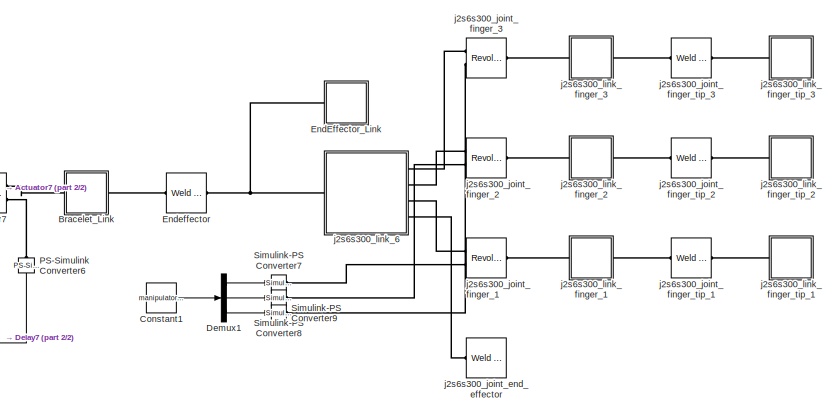
[diagram: root canvas - part 1/2, top right region]
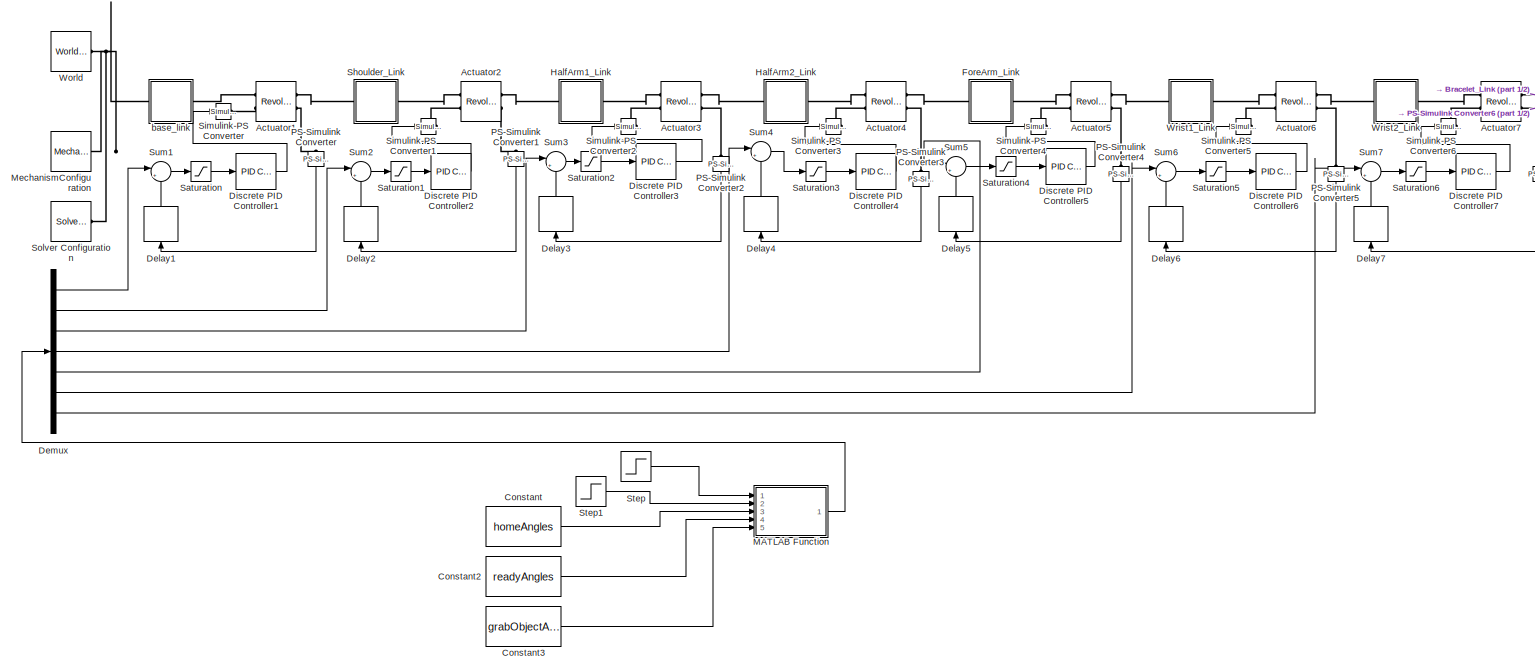
[diagram: root canvas - part 2/2, left side, full height]
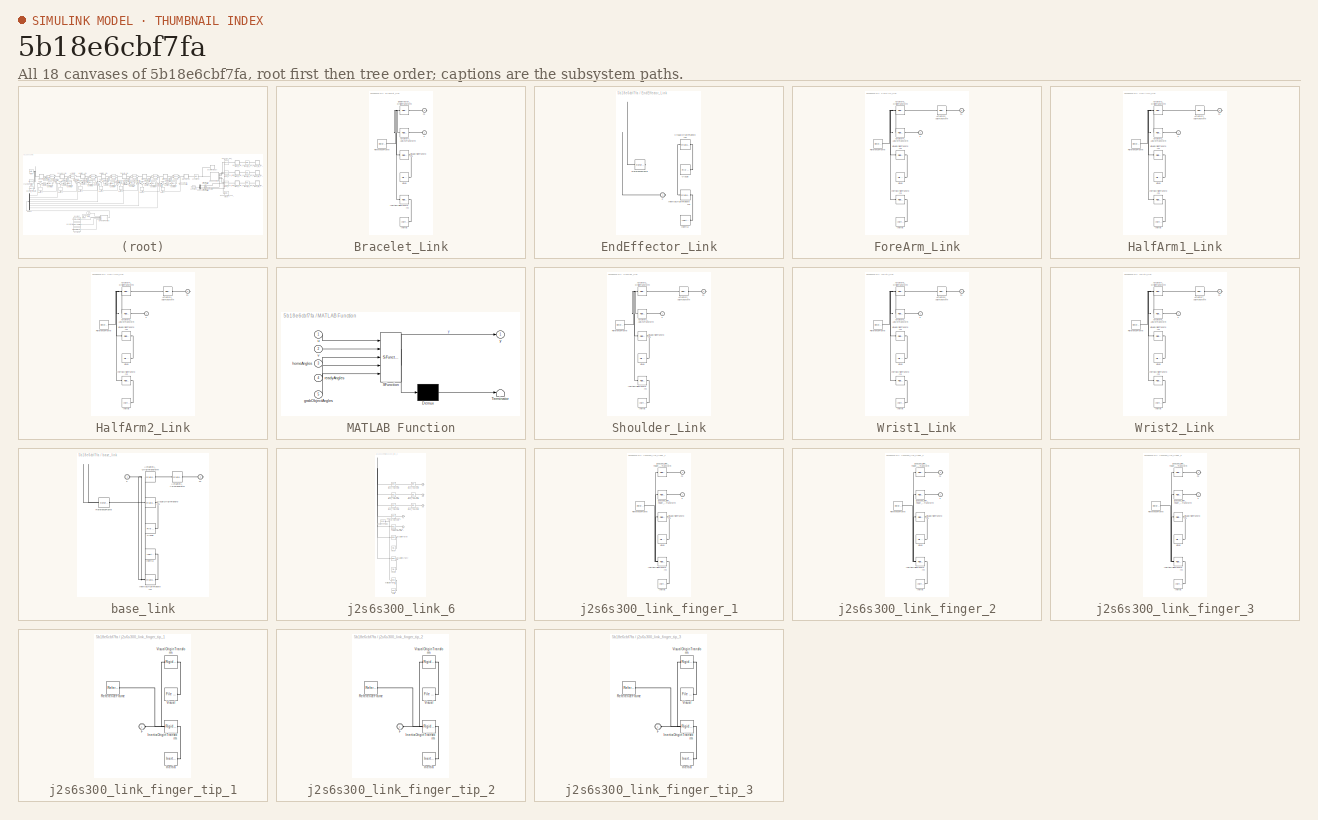
[diagram: thumbnail index - all 18 canvases of the model, root first then tree order]
MODEL slx_5b18e6cbf7fa
KIND model
CONFIG AbsTol = auto
CONFIG EnableMultiTasking = off
CONFIG FixedStep = 0.001
CONFIG MaxStep = auto
CONFIG MinStep = auto
CONFIG RelTol = 1e-3
CONFIG SampleTimeConstraint = Unconstrained
CONFIG SolverName = FixedStepAuto
CONFIG StartTime = 0.0
CONFIG StopTime = 30
BLOCK [Reference] Actuator1  REF=sm_lib/Joints/Revolute Joint
  Ports = [0, 0, 0, 0, 0, 2, 2]
  SourceBlock = sm_lib/Joints/Revolute Joint
  SourceProductBaseCode = MS
  SourceType = Revolute Joint
BLOCK [Reference] Actuator2  REF=sm_lib/Joints/Revolute Joint
  Ports = [0, 0, 0, 0, 0, 2, 2]
  SourceBlock = sm_lib/Joints/Revolute Joint
  SourceProductBaseCode = MS
  SourceType = Revolute Joint
BLOCK [Reference] Actuator3  REF=sm_lib/Joints/Revolute Joint
  Ports = [0, 0, 0, 0, 0, 2, 2]
  SourceBlock = sm_lib/Joints/Revolute Joint
  SourceProductBaseCode = MS
  SourceType = Revolute Joint
BLOCK [Reference] Actuator4  REF=sm_lib/Joints/Revolute Joint
  Ports = [0, 0, 0, 0, 0, 2, 2]
  SourceBlock = sm_lib/Joints/Revolute Joint
  SourceProductBaseCode = MS
  SourceType = Revolute Joint
BLOCK [Reference] Actuator5  REF=sm_lib/Joints/Revolute Joint
  Ports = [0, 0, 0, 0, 0, 2, 2]
  SourceBlock = sm_lib/Joints/Revolute Joint
  SourceProductBaseCode = MS
  SourceType = Revolute Joint
BLOCK [Reference] Actuator6  REF=sm_lib/Joints/Revolute Joint
  Ports = [0, 0, 0, 0, 0, 2, 2]
  SourceBlock = sm_lib/Joints/Revolute Joint
  SourceProductBaseCode = MS
  SourceType = Revolute Joint
BLOCK [Reference] Actuator7  REF=sm_lib/Joints/Revolute Joint
  Ports = [0, 0, 0, 0, 0, 2, 2]
  SourceBlock = sm_lib/Joints/Revolute Joint
  SourceProductBaseCode = MS
  SourceType = Revolute Joint
BLOCK [SubSystem] Bracelet_Link
  Ports = [0, 0, 0, 0, 0, 1, 1]
  RequestExecContextInheritance = off
BLOCK [Reference] Bracelet_Link/Actuator7_AxisInvTransform  REF=sm_lib/Frames and
Transforms/Rigid
Transform
  Ports = [0, 0, 0, 0, 0, 1, 1]
  SourceBlock = sm_lib/Frames and\nTransforms/Rigid\nTransform
  SourceProductBaseCode = MS
  SourceType = Rigid\nTransform
BLOCK [Reference] Bracelet_Link/Endeffector_OriginTransform  REF=sm_lib/Frames and
Transforms/Rigid
Transform
  Ports = [0, 0, 0, 0, 0, 1, 1]
  SourceBlock = sm_lib/Frames and\nTransforms/Rigid\nTransform
  SourceProductBaseCode = MS
  SourceType = Rigid\nTransform
BLOCK [PMIOPort] Bracelet_Link/F
  Side = Left
BLOCK [PMIOPort] Bracelet_Link/F1
  Port = 2
  Side = Right
BLOCK [Reference] Bracelet_Link/Inertia  REF=sm_lib/Body Elements/Inertia
  Ports = [0, 0, 0, 0, 0, 0, 1]
  SourceBlock = sm_lib/Body Elements/Inertia
  SourceProductBaseCode = MS
  SourceType = Inertia
BLOCK [Reference] Bracelet_Link/InertiaOriginTransform  REF=sm_lib/Frames and
Transforms/Rigid
Transform
  Ports = [0, 0, 0, 0, 0, 1, 1]
  SourceBlock = sm_lib/Frames and\nTransforms/Rigid\nTransform
  SourceProductBaseCode = MS
  SourceType = Rigid\nTransform
BLOCK [Reference] Bracelet_Link/ReferenceFrame  REF=sm_lib/Frames and
Transforms/Reference
Frame
  Ports = [0, 0, 0, 0, 0, 0, 1]
  SourceBlock = sm_lib/Frames and\nTransforms/Reference\nFrame
  SourceProductBaseCode = MS
  SourceType = Reference\nFrame
BLOCK [Reference] Bracelet_Link/Visual  REF=sm_lib/Body Elements/File Solid
  Ports = [0, 0, 0, 0, 0, 0, 1]
  SourceBlock = sm_lib/Body Elements/File Solid
  SourceProductBaseCode = MS
  SourceType = File Solid
BLOCK [Reference] Bracelet_Link/VisualOriginTransform  REF=sm_lib/Frames and
Transforms/Rigid
Transform
  Ports = [0, 0, 0, 0, 0, 1, 1]
  SourceBlock = sm_lib/Frames and\nTransforms/Rigid\nTransform
  SourceProductBaseCode = MS
  SourceType = Rigid\nTransform
BLOCK [Constant] Constant
  SampleTime = -1
  Value = homeAngles
BLOCK [Constant] Constant1
  SampleTime = -1
  Value = manipulatorGripperAngles
BLOCK [Constant] Constant2
  SampleTime = -1
  Value = readyAngles
BLOCK [Constant] Constant3
  SampleTime = -1
  Value = grabObjectAngles
BLOCK [Delay] Delay1
  DelayLength = 1
  InitialCondition = 0
  InputPortMap = u0
  NameLocation = right
  Ports = [1, 1]
BLOCK [Delay] Delay2
  DelayLength = 1
  InitialCondition = 0
  InputPortMap = u0
  NameLocation = right
  Ports = [1, 1]
BLOCK [Delay] Delay3
  DelayLength = 1
  InitialCondition = 0
  InputPortMap = u0
  NameLocation = right
  Ports = [1, 1]
BLOCK [Delay] Delay4
  DelayLength = 1
  InitialCondition = 0
  InputPortMap = u0
  NameLocation = right
  Ports = [1, 1]
BLOCK [Delay] Delay5
  DelayLength = 1
  InitialCondition = 0
  InputPortMap = u0
  NameLocation = right
  Ports = [1, 1]
BLOCK [Delay] Delay6
  DelayLength = 1
  InitialCondition = 0
  InputPortMap = u0
  NameLocation = right
  Ports = [1, 1]
BLOCK [Delay] Delay7
  DelayLength = 1
  InitialCondition = 0
  InputPortMap = u0
  NameLocation = right
  Ports = [1, 1]
BLOCK [Demux] Demux
  Outputs = 7
  Ports = [1, 7]
BLOCK [Demux] Demux1
  Outputs = 3
  Ports = [1, 3]
BLOCK [Reference] Discrete PID Controller1  REF=slpidlib/PID Controller
  Ports = [1, 1]
  SourceBlock = slpidlib/PID Controller
  SourceProductBaseCode = SL
  SourceType = PID 1dof
BLOCK [Reference] Discrete PID Controller2  REF=slpidlib/PID Controller
  Ports = [1, 1]
  SourceBlock = slpidlib/PID Controller
  SourceProductBaseCode = SL
  SourceType = PID 1dof
BLOCK [Reference] Discrete PID Controller3  REF=slpidlib/PID Controller
  Ports = [1, 1]
  SourceBlock = slpidlib/PID Controller
  SourceProductBaseCode = SL
  SourceType = PID 1dof
BLOCK [Reference] Discrete PID Controller4  REF=slpidlib/PID Controller
  Ports = [1, 1]
  SourceBlock = slpidlib/PID Controller
  SourceProductBaseCode = SL
  SourceType = PID 1dof
BLOCK [Reference] Discrete PID Controller5  REF=slpidlib/PID Controller
  Ports = [1, 1]
  SourceBlock = slpidlib/PID Controller
  SourceProductBaseCode = SL
  SourceType = PID 1dof
BLOCK [Reference] Discrete PID Controller6  REF=slpidlib/PID Controller
  Ports = [1, 1]
  SourceBlock = slpidlib/PID Controller
  SourceProductBaseCode = SL
  SourceType = PID 1dof
BLOCK [Reference] Discrete PID Controller7  REF=slpidlib/PID Controller
  Ports = [1, 1]
  SourceBlock = slpidlib/PID Controller
  SourceProductBaseCode = SL
  SourceType = PID 1dof
BLOCK [SubSystem] EndEffector_Link
  Ports = [0, 0, 0, 0, 0, 1]
  RequestExecContextInheritance = off
BLOCK [PMIOPort] EndEffector_Link/F
  Side = Left
BLOCK [Reference] EndEffector_Link/Inertia  REF=sm_lib/Body Elements/Inertia
  Ports = [0, 0, 0, 0, 0, 0, 1]
  SourceBlock = sm_lib/Body Elements/Inertia
  SourceProductBaseCode = MS
  SourceType = Inertia
BLOCK [Reference] EndEffector_Link/InertiaOriginTransform  REF=sm_lib/Frames and
Transforms/Rigid
Transform
  Ports = [0, 0, 0, 0, 0, 1, 1]
  SourceBlock = sm_lib/Frames and\nTransforms/Rigid\nTransform
  SourceProductBaseCode = MS
  SourceType = Rigid\nTransform
BLOCK [Reference] EndEffector_Link/ReferenceFrame  REF=sm_lib/Frames and
Transforms/Reference
Frame
  Ports = [0, 0, 0, 0, 0, 0, 1]
  SourceBlock = sm_lib/Frames and\nTransforms/Reference\nFrame
  SourceProductBaseCode = MS
  SourceType = Reference\nFrame
BLOCK [Reference] EndEffector_Link/Visual  REF=sm_lib/Body Elements/File Solid
  Ports = [0, 0, 0, 0, 0, 0, 1]
  SourceBlock = sm_lib/Body Elements/File Solid
  SourceProductBaseCode = MS
  SourceType = File Solid
BLOCK [Reference] EndEffector_Link/VisualOriginTransform  REF=sm_lib/Frames and
Transforms/Rigid
Transform
  Ports = [0, 0, 0, 0, 0, 1, 1]
  SourceBlock = sm_lib/Frames and\nTransforms/Rigid\nTransform
  SourceProductBaseCode = MS
  SourceType = Rigid\nTransform
BLOCK [Reference] Endeffector  REF=sm_lib/Joints/Weld Joint
  Ports = [0, 0, 0, 0, 0, 1, 1]
  SourceBlock = sm_lib/Joints/Weld Joint
  SourceProductBaseCode = MS
  SourceType = Weld Joint
BLOCK [SubSystem] ForeArm_Link
  Ports = [0, 0, 0, 0, 0, 1, 1]
  RequestExecContextInheritance = off
BLOCK [Reference] ForeArm_Link/Actuator4_AxisInvTransform  REF=sm_lib/Frames and
Transforms/Rigid
Transform
  Ports = [0, 0, 0, 0, 0, 1, 1]
  SourceBlock = sm_lib/Frames and\nTransforms/Rigid\nTransform
  SourceProductBaseCode = MS
  SourceType = Rigid\nTransform
BLOCK [Reference] ForeArm_Link/Actuator5_AxisTransform  REF=sm_lib/Frames and
Transforms/Rigid
Transform
  Ports = [0, 0, 0, 0, 0, 1, 1]
  SourceBlock = sm_lib/Frames and\nTransforms/Rigid\nTransform
  SourceProductBaseCode = MS
  SourceType = Rigid\nTransform
BLOCK [Reference] ForeArm_Link/Actuator5_OriginTransform  REF=sm_lib/Frames and
Transforms/Rigid
Transform
  Ports = [0, 0, 0, 0, 0, 1, 1]
  SourceBlock = sm_lib/Frames and\nTransforms/Rigid\nTransform
  SourceProductBaseCode = MS
  SourceType = Rigid\nTransform
BLOCK [PMIOPort] ForeArm_Link/F
  Side = Left
BLOCK [PMIOPort] ForeArm_Link/F1
  Port = 2
  Side = Right
BLOCK [Reference] ForeArm_Link/Inertia  REF=sm_lib/Body Elements/Inertia
  Ports = [0, 0, 0, 0, 0, 0, 1]
  SourceBlock = sm_lib/Body Elements/Inertia
  SourceProductBaseCode = MS
  SourceType = Inertia
BLOCK [Reference] ForeArm_Link/InertiaOriginTransform  REF=sm_lib/Frames and
Transforms/Rigid
Transform
  Ports = [0, 0, 0, 0, 0, 1, 1]
  SourceBlock = sm_lib/Frames and\nTransforms/Rigid\nTransform
  SourceProductBaseCode = MS
  SourceType = Rigid\nTransform
BLOCK [Reference] ForeArm_Link/ReferenceFrame  REF=sm_lib/Frames and
Transforms/Reference
Frame
  Ports = [0, 0, 0, 0, 0, 0, 1]
  SourceBlock = sm_lib/Frames and\nTransforms/Reference\nFrame
  SourceProductBaseCode = MS
  SourceType = Reference\nFrame
BLOCK [Reference] ForeArm_Link/Visual  REF=sm_lib/Body Elements/File Solid
  Ports = [0, 0, 0, 0, 0, 0, 1]
  SourceBlock = sm_lib/Body Elements/File Solid
  SourceProductBaseCode = MS
  SourceType = File Solid
BLOCK [Reference] ForeArm_Link/VisualOriginTransform  REF=sm_lib/Frames and
Transforms/Rigid
Transform
  Ports = [0, 0, 0, 0, 0, 1, 1]
  SourceBlock = sm_lib/Frames and\nTransforms/Rigid\nTransform
  SourceProductBaseCode = MS
  SourceType = Rigid\nTransform
BLOCK [SubSystem] HalfArm1_Link
  Ports = [0, 0, 0, 0, 0, 1, 1]
  RequestExecContextInheritance = off
BLOCK [Reference] HalfArm1_Link/Actuator2_AxisInvTransform  REF=sm_lib/Frames and
Transforms/Rigid
Transform
  Ports = [0, 0, 0, 0, 0, 1, 1]
  SourceBlock = sm_lib/Frames and\nTransforms/Rigid\nTransform
  SourceProductBaseCode = MS
  SourceType = Rigid\nTransform
BLOCK [Reference] HalfArm1_Link/Actuator3_AxisTransform  REF=sm_lib/Frames and
Transforms/Rigid
Transform
  Ports = [0, 0, 0, 0, 0, 1, 1]
  SourceBlock = sm_lib/Frames and\nTransforms/Rigid\nTransform
  SourceProductBaseCode = MS
  SourceType = Rigid\nTransform
BLOCK [Reference] HalfArm1_Link/Actuator3_OriginTransform  REF=sm_lib/Frames and
Transforms/Rigid
Transform
  Ports = [0, 0, 0, 0, 0, 1, 1]
  SourceBlock = sm_lib/Frames and\nTransforms/Rigid\nTransform
  SourceProductBaseCode = MS
  SourceType = Rigid\nTransform
BLOCK [PMIOPort] HalfArm1_Link/F
  Side = Left
BLOCK [PMIOPort] HalfArm1_Link/F1
  Port = 2
  Side = Right
BLOCK [Reference] HalfArm1_Link/Inertia  REF=sm_lib/Body Elements/Inertia
  Ports = [0, 0, 0, 0, 0, 0, 1]
  SourceBlock = sm_lib/Body Elements/Inertia
  SourceProductBaseCode = MS
  SourceType = Inertia
BLOCK [Reference] HalfArm1_Link/InertiaOriginTransform  REF=sm_lib/Frames and
Transforms/Rigid
Transform
  Ports = [0, 0, 0, 0, 0, 1, 1]
  SourceBlock = sm_lib/Frames and\nTransforms/Rigid\nTransform
  SourceProductBaseCode = MS
  SourceType = Rigid\nTransform
BLOCK [Reference] HalfArm1_Link/ReferenceFrame  REF=sm_lib/Frames and
Transforms/Reference
Frame
  Ports = [0, 0, 0, 0, 0, 0, 1]
  SourceBlock = sm_lib/Frames and\nTransforms/Reference\nFrame
  SourceProductBaseCode = MS
  SourceType = Reference\nFrame
BLOCK [Reference] HalfArm1_Link/Visual  REF=sm_lib/Body Elements/File Solid
  Ports = [0, 0, 0, 0, 0, 0, 1]
  SourceBlock = sm_lib/Body Elements/File Solid
  SourceProductBaseCode = MS
  SourceType = File Solid
BLOCK [Reference] HalfArm1_Link/VisualOriginTransform  REF=sm_lib/Frames and
Transforms/Rigid
Transform
  Ports = [0, 0, 0, 0, 0, 1, 1]
  SourceBlock = sm_lib/Frames and\nTransforms/Rigid\nTransform
  SourceProductBaseCode = MS
  SourceType = Rigid\nTransform
BLOCK [SubSystem] HalfArm2_Link
  Ports = [0, 0, 0, 0, 0, 1, 1]
  RequestExecContextInheritance = off
BLOCK [Reference] HalfArm2_Link/Actuator3_AxisInvTransform  REF=sm_lib/Frames and
Transforms/Rigid
Transform
  Ports = [0, 0, 0, 0, 0, 1, 1]
  SourceBlock = sm_lib/Frames and\nTransforms/Rigid\nTransform
  SourceProductBaseCode = MS
  SourceType = Rigid\nTransform
BLOCK [Reference] HalfArm2_Link/Actuator4_AxisTransform  REF=sm_lib/Frames and
Transforms/Rigid
Transform
  Ports = [0, 0, 0, 0, 0, 1, 1]
  SourceBlock = sm_lib/Frames and\nTransforms/Rigid\nTransform
  SourceProductBaseCode = MS
  SourceType = Rigid\nTransform
BLOCK [Reference] HalfArm2_Link/Actuator4_OriginTransform  REF=sm_lib/Frames and
Transforms/Rigid
Transform
  Ports = [0, 0, 0, 0, 0, 1, 1]
  SourceBlock = sm_lib/Frames and\nTransforms/Rigid\nTransform
  SourceProductBaseCode = MS
  SourceType = Rigid\nTransform
BLOCK [PMIOPort] HalfArm2_Link/F
  Side = Left
BLOCK [PMIOPort] HalfArm2_Link/F1
  Port = 2
  Side = Right
BLOCK [Reference] HalfArm2_Link/Inertia  REF=sm_lib/Body Elements/Inertia
  Ports = [0, 0, 0, 0, 0, 0, 1]
  SourceBlock = sm_lib/Body Elements/Inertia
  SourceProductBaseCode = MS
  SourceType = Inertia
BLOCK [Reference] HalfArm2_Link/InertiaOriginTransform  REF=sm_lib/Frames and
Transforms/Rigid
Transform
  Ports = [0, 0, 0, 0, 0, 1, 1]
  SourceBlock = sm_lib/Frames and\nTransforms/Rigid\nTransform
  SourceProductBaseCode = MS
  SourceType = Rigid\nTransform
BLOCK [Reference] HalfArm2_Link/ReferenceFrame  REF=sm_lib/Frames and
Transforms/Reference
Frame
  Ports = [0, 0, 0, 0, 0, 0, 1]
  SourceBlock = sm_lib/Frames and\nTransforms/Reference\nFrame
  SourceProductBaseCode = MS
  SourceType = Reference\nFrame
BLOCK [Reference] HalfArm2_Link/Visual  REF=sm_lib/Body Elements/File Solid
  Ports = [0, 0, 0, 0, 0, 0, 1]
  SourceBlock = sm_lib/Body Elements/File Solid
  SourceProductBaseCode = MS
  SourceType = File Solid
BLOCK [Reference] HalfArm2_Link/VisualOriginTransform  REF=sm_lib/Frames and
Transforms/Rigid
Transform
  Ports = [0, 0, 0, 0, 0, 1, 1]
  SourceBlock = sm_lib/Frames and\nTransforms/Rigid\nTransform
  SourceProductBaseCode = MS
  SourceType = Rigid\nTransform
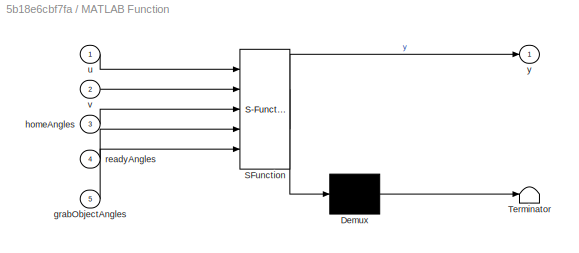
BLOCK [SubSystem] MATLAB Function
  ErrorFcn = Stateflow.Translate.translate
  PermitHierarchicalResolution = ExplicitOnly
  Ports = [5, 1]
  RequestExecContextInheritance = off
  SFBlockType = MATLAB Function
  TreatAsAtomicUnit = on
BLOCK [Demux] MATLAB Function/ Demux 
  Outputs = 1
  Ports = [1, 1]
BLOCK [S-Function] MATLAB Function/ SFunction 
  EnableBusSupport = on
  FunctionName = sf_sfun
  PortCounts = [5 2]
  Ports = [5, 2]
  SFcnIsStateOwnerBlock = off
  SFunctionDeploymentMode = off
  Tag = Stateflow S-Function 2
BLOCK [Terminator] MATLAB Function/ Terminator 
BLOCK [Inport] MATLAB Function/grabObjectAngles
  Port = 5
BLOCK [Inport] MATLAB Function/homeAngles
  Port = 3
BLOCK [Inport] MATLAB Function/readyAngles
  Port = 4
BLOCK [Inport] MATLAB Function/u
BLOCK [Inport] MATLAB Function/v
  Port = 2
BLOCK [Outport] MATLAB Function/y
BLOCK [Reference] MechanismConfiguration  REF=sm_lib/Utilities/Mechanism
Configuration
  Ports = [0, 0, 0, 0, 0, 0, 1]
  SourceBlock = sm_lib/Utilities/Mechanism\nConfiguration
  SourceProductBaseCode = MS
  SourceType = Mechanism\nConfiguration
BLOCK [Reference] PS-Simulink Converter  REF=nesl_utility/PS-Simulink
Converter
  NameLocation = left
  Ports = [0, 1, 0, 0, 0, 1]
  SourceBlock = nesl_utility/PS-Simulink\nConverter
  SourceProductBaseCode = SS,PW,VE
  SourceType = PS-Simulink\nConverter
BLOCK [Reference] PS-Simulink Converter1  REF=nesl_utility/PS-Simulink
Converter
  NameLocation = left
  Ports = [0, 1, 0, 0, 0, 1]
  SourceBlock = nesl_utility/PS-Simulink\nConverter
  SourceProductBaseCode = SS,PW,VE
  SourceType = PS-Simulink\nConverter
BLOCK [Reference] PS-Simulink Converter2  REF=nesl_utility/PS-Simulink
Converter
  NameLocation = left
  Ports = [0, 1, 0, 0, 0, 1]
  SourceBlock = nesl_utility/PS-Simulink\nConverter
  SourceProductBaseCode = SS,PW,VE
  SourceType = PS-Simulink\nConverter
BLOCK [Reference] PS-Simulink Converter3  REF=nesl_utility/PS-Simulink
Converter
  NameLocation = left
  Ports = [0, 1, 0, 0, 0, 1]
  SourceBlock = nesl_utility/PS-Simulink\nConverter
  SourceProductBaseCode = SS,PW,VE
  SourceType = PS-Simulink\nConverter
BLOCK [Reference] PS-Simulink Converter4  REF=nesl_utility/PS-Simulink
Converter
  NameLocation = left
  Ports = [0, 1, 0, 0, 0, 1]
  SourceBlock = nesl_utility/PS-Simulink\nConverter
  SourceProductBaseCode = SS,PW,VE
  SourceType = PS-Simulink\nConverter
BLOCK [Reference] PS-Simulink Converter5  REF=nesl_utility/PS-Simulink
Converter
  NameLocation = left
  Ports = [0, 1, 0, 0, 0, 1]
  SourceBlock = nesl_utility/PS-Simulink\nConverter
  SourceProductBaseCode = SS,PW,VE
  SourceType = PS-Simulink\nConverter
BLOCK [Reference] PS-Simulink Converter6  REF=nesl_utility/PS-Simulink
Converter
  NameLocation = left
  Ports = [0, 1, 0, 0, 0, 1]
  SourceBlock = nesl_utility/PS-Simulink\nConverter
  SourceProductBaseCode = SS,PW,VE
  SourceType = PS-Simulink\nConverter
BLOCK [Saturate] Saturation
BLOCK [Saturate] Saturation1
BLOCK [Saturate] Saturation2
BLOCK [Saturate] Saturation3
BLOCK [Saturate] Saturation4
BLOCK [Saturate] Saturation5
BLOCK [Saturate] Saturation6
BLOCK [SubSystem] Shoulder_Link
  Ports = [0, 0, 0, 0, 0, 1, 1]
  RequestExecContextInheritance = off
BLOCK [Reference] Shoulder_Link/Actuator1_AxisInvTransform  REF=sm_lib/Frames and
Transforms/Rigid
Transform
  Ports = [0, 0, 0, 0, 0, 1, 1]
  SourceBlock = sm_lib/Frames and\nTransforms/Rigid\nTransform
  SourceProductBaseCode = MS
  SourceType = Rigid\nTransform
BLOCK [Reference] Shoulder_Link/Actuator2_AxisTransform  REF=sm_lib/Frames and
Transforms/Rigid
Transform
  Ports = [0, 0, 0, 0, 0, 1, 1]
  SourceBlock = sm_lib/Frames and\nTransforms/Rigid\nTransform
  SourceProductBaseCode = MS
  SourceType = Rigid\nTransform
BLOCK [Reference] Shoulder_Link/Actuator2_OriginTransform  REF=sm_lib/Frames and
Transforms/Rigid
Transform
  Ports = [0, 0, 0, 0, 0, 1, 1]
  SourceBlock = sm_lib/Frames and\nTransforms/Rigid\nTransform
  SourceProductBaseCode = MS
  SourceType = Rigid\nTransform
BLOCK [PMIOPort] Shoulder_Link/F
  Side = Left
BLOCK [PMIOPort] Shoulder_Link/F1
  Port = 2
  Side = Right
BLOCK [Reference] Shoulder_Link/Inertia  REF=sm_lib/Body Elements/Inertia
  Ports = [0, 0, 0, 0, 0, 0, 1]
  SourceBlock = sm_lib/Body Elements/Inertia
  SourceProductBaseCode = MS
  SourceType = Inertia
BLOCK [Reference] Shoulder_Link/InertiaOriginTransform  REF=sm_lib/Frames and
Transforms/Rigid
Transform
  Ports = [0, 0, 0, 0, 0, 1, 1]
  SourceBlock = sm_lib/Frames and\nTransforms/Rigid\nTransform
  SourceProductBaseCode = MS
  SourceType = Rigid\nTransform
BLOCK [Reference] Shoulder_Link/ReferenceFrame  REF=sm_lib/Frames and
Transforms/Reference
Frame
  Ports = [0, 0, 0, 0, 0, 0, 1]
  SourceBlock = sm_lib/Frames and\nTransforms/Reference\nFrame
  SourceProductBaseCode = MS
  SourceType = Reference\nFrame
BLOCK [Reference] Shoulder_Link/Visual  REF=sm_lib/Body Elements/File Solid
  Ports = [0, 0, 0, 0, 0, 0, 1]
  SourceBlock = sm_lib/Body Elements/File Solid
  SourceProductBaseCode = MS
  SourceType = File Solid
BLOCK [Reference] Shoulder_Link/VisualOriginTransform  REF=sm_lib/Frames and
Transforms/Rigid
Transform
  Ports = [0, 0, 0, 0, 0, 1, 1]
  SourceBlock = sm_lib/Frames and\nTransforms/Rigid\nTransform
  SourceProductBaseCode = MS
  SourceType = Rigid\nTransform
BLOCK [Reference] Simulink-PS Converter  REF=nesl_utility/Simulink-PS
Converter
  Ports = [1, 0, 0, 0, 0, 0, 1]
  SourceBlock = nesl_utility/Simulink-PS\nConverter
  SourceProductBaseCode = SS,PW,VE
  SourceType = Simulink-PS\nConverter
BLOCK [Reference] Simulink-PS Converter1  REF=nesl_utility/Simulink-PS
Converter
  Ports = [1, 0, 0, 0, 0, 0, 1]
  SourceBlock = nesl_utility/Simulink-PS\nConverter
  SourceProductBaseCode = SS,PW,VE
  SourceType = Simulink-PS\nConverter
BLOCK [Reference] Simulink-PS Converter2  REF=nesl_utility/Simulink-PS
Converter
  Ports = [1, 0, 0, 0, 0, 0, 1]
  SourceBlock = nesl_utility/Simulink-PS\nConverter
  SourceProductBaseCode = SS,PW,VE
  SourceType = Simulink-PS\nConverter
BLOCK [Reference] Simulink-PS Converter3  REF=nesl_utility/Simulink-PS
Converter
  Ports = [1, 0, 0, 0, 0, 0, 1]
  SourceBlock = nesl_utility/Simulink-PS\nConverter
  SourceProductBaseCode = SS,PW,VE
  SourceType = Simulink-PS\nConverter
BLOCK [Reference] Simulink-PS Converter4  REF=nesl_utility/Simulink-PS
Converter
  Ports = [1, 0, 0, 0, 0, 0, 1]
  SourceBlock = nesl_utility/Simulink-PS\nConverter
  SourceProductBaseCode = SS,PW,VE
  SourceType = Simulink-PS\nConverter
BLOCK [Reference] Simulink-PS Converter5  REF=nesl_utility/Simulink-PS
Converter
  Ports = [1, 0, 0, 0, 0, 0, 1]
  SourceBlock = nesl_utility/Simulink-PS\nConverter
  SourceProductBaseCode = SS,PW,VE
  SourceType = Simulink-PS\nConverter
BLOCK [Reference] Simulink-PS Converter6  REF=nesl_utility/Simulink-PS
Converter
  Ports = [1, 0, 0, 0, 0, 0, 1]
  SourceBlock = nesl_utility/Simulink-PS\nConverter
  SourceProductBaseCode = SS,PW,VE
  SourceType = Simulink-PS\nConverter
BLOCK [Reference] Simulink-PS Converter7  REF=nesl_utility/Simulink-PS
Converter
  Ports = [1, 0, 0, 0, 0, 0, 1]
  SourceBlock = nesl_utility/Simulink-PS\nConverter
  SourceProductBaseCode = SS,PW,VE
  SourceType = Simulink-PS\nConverter
BLOCK [Reference] Simulink-PS Converter8  REF=nesl_utility/Simulink-PS
Converter
  Ports = [1, 0, 0, 0, 0, 0, 1]
  SourceBlock = nesl_utility/Simulink-PS\nConverter
  SourceProductBaseCode = SS,PW,VE
  SourceType = Simulink-PS\nConverter
BLOCK [Reference] Simulink-PS Converter9  REF=nesl_utility/Simulink-PS
Converter
  Ports = [1, 0, 0, 0, 0, 0, 1]
  SourceBlock = nesl_utility/Simulink-PS\nConverter
  SourceProductBaseCode = SS,PW,VE
  SourceType = Simulink-PS\nConverter
BLOCK [Reference] Solver Configuration  REF=nesl_utility/Solver
Configuration
  Ports = [0, 0, 0, 0, 0, 0, 1]
  SourceBlock = nesl_utility/Solver\nConfiguration
  SourceProductBaseCode = SS,PW,VE
  SourceType = Solver\nConfiguration
BLOCK [Step] Step
  SampleTime = 0
  Time = 10
BLOCK [Step] Step1
  SampleTime = 0
  Time = 20
BLOCK [Sum] Sum1
  Inputs = |+-
  Ports = [2, 1]
BLOCK [Sum] Sum2
  Inputs = |+-
  Ports = [2, 1]
BLOCK [Sum] Sum3
  Inputs = |+-
  Ports = [2, 1]
BLOCK [Sum] Sum4
  Inputs = |+-
  Ports = [2, 1]
BLOCK [Sum] Sum5
  Inputs = |+-
  Ports = [2, 1]
BLOCK [Sum] Sum6
  Inputs = |+-
  Ports = [2, 1]
BLOCK [Sum] Sum7
  Inputs = |+-
  Ports = [2, 1]
BLOCK [Reference] World  REF=sm_lib/Frames and
Transforms/World Frame
  Ports = [0, 0, 0, 0, 0, 0, 1]
  SourceBlock = sm_lib/Frames and\nTransforms/World Frame
  SourceProductBaseCode = MS
  SourceType = World Frame
BLOCK [SubSystem] Wrist1_Link
  Ports = [0, 0, 0, 0, 0, 1, 1]
  RequestExecContextInheritance = off
BLOCK [Reference] Wrist1_Link/Actuator5_AxisInvTransform  REF=sm_lib/Frames and
Transforms/Rigid
Transform
  Ports = [0, 0, 0, 0, 0, 1, 1]
  SourceBlock = sm_lib/Frames and\nTransforms/Rigid\nTransform
  SourceProductBaseCode = MS
  SourceType = Rigid\nTransform
BLOCK [Reference] Wrist1_Link/Actuator6_AxisTransform  REF=sm_lib/Frames and
Transforms/Rigid
Transform
  Ports = [0, 0, 0, 0, 0, 1, 1]
  SourceBlock = sm_lib/Frames and\nTransforms/Rigid\nTransform
  SourceProductBaseCode = MS
  SourceType = Rigid\nTransform
BLOCK [Reference] Wrist1_Link/Actuator6_OriginTransform  REF=sm_lib/Frames and
Transforms/Rigid
Transform
  Ports = [0, 0, 0, 0, 0, 1, 1]
  SourceBlock = sm_lib/Frames and\nTransforms/Rigid\nTransform
  SourceProductBaseCode = MS
  SourceType = Rigid\nTransform
BLOCK [PMIOPort] Wrist1_Link/F
  Side = Left
BLOCK [PMIOPort] Wrist1_Link/F1
  Port = 2
  Side = Right
BLOCK [Reference] Wrist1_Link/Inertia  REF=sm_lib/Body Elements/Inertia
  Ports = [0, 0, 0, 0, 0, 0, 1]
  SourceBlock = sm_lib/Body Elements/Inertia
  SourceProductBaseCode = MS
  SourceType = Inertia
BLOCK [Reference] Wrist1_Link/InertiaOriginTransform  REF=sm_lib/Frames and
Transforms/Rigid
Transform
  Ports = [0, 0, 0, 0, 0, 1, 1]
  SourceBlock = sm_lib/Frames and\nTransforms/Rigid\nTransform
  SourceProductBaseCode = MS
  SourceType = Rigid\nTransform
BLOCK [Reference] Wrist1_Link/ReferenceFrame  REF=sm_lib/Frames and
Transforms/Reference
Frame
  Ports = [0, 0, 0, 0, 0, 0, 1]
  SourceBlock = sm_lib/Frames and\nTransforms/Reference\nFrame
  SourceProductBaseCode = MS
  SourceType = Reference\nFrame
BLOCK [Reference] Wrist1_Link/Visual  REF=sm_lib/Body Elements/File Solid
  Ports = [0, 0, 0, 0, 0, 0, 1]
  SourceBlock = sm_lib/Body Elements/File Solid
  SourceProductBaseCode = MS
  SourceType = File Solid
BLOCK [Reference] Wrist1_Link/VisualOriginTransform  REF=sm_lib/Frames and
Transforms/Rigid
Transform
  Ports = [0, 0, 0, 0, 0, 1, 1]
  SourceBlock = sm_lib/Frames and\nTransforms/Rigid\nTransform
  SourceProductBaseCode = MS
  SourceType = Rigid\nTransform
BLOCK [SubSystem] Wrist2_Link
  Ports = [0, 0, 0, 0, 0, 1, 1]
  RequestExecContextInheritance = off
BLOCK [Reference] Wrist2_Link/Actuator6_AxisInvTransform  REF=sm_lib/Frames and
Transforms/Rigid
Transform
  Ports = [0, 0, 0, 0, 0, 1, 1]
  SourceBlock = sm_lib/Frames and\nTransforms/Rigid\nTransform
  SourceProductBaseCode = MS
  SourceType = Rigid\nTransform
BLOCK [Reference] Wrist2_Link/Actuator7_AxisTransform  REF=sm_lib/Frames and
Transforms/Rigid
Transform
  Ports = [0, 0, 0, 0, 0, 1, 1]
  SourceBlock = sm_lib/Frames and\nTransforms/Rigid\nTransform
  SourceProductBaseCode = MS
  SourceType = Rigid\nTransform
BLOCK [Reference] Wrist2_Link/Actuator7_OriginTransform  REF=sm_lib/Frames and
Transforms/Rigid
Transform
  Ports = [0, 0, 0, 0, 0, 1, 1]
  SourceBlock = sm_lib/Frames and\nTransforms/Rigid\nTransform
  SourceProductBaseCode = MS
  SourceType = Rigid\nTransform
BLOCK [PMIOPort] Wrist2_Link/F
  Side = Left
BLOCK [PMIOPort] Wrist2_Link/F1
  Port = 2
  Side = Right
BLOCK [Reference] Wrist2_Link/Inertia  REF=sm_lib/Body Elements/Inertia
  Ports = [0, 0, 0, 0, 0, 0, 1]
  SourceBlock = sm_lib/Body Elements/Inertia
  SourceProductBaseCode = MS
  SourceType = Inertia
BLOCK [Reference] Wrist2_Link/InertiaOriginTransform  REF=sm_lib/Frames and
Transforms/Rigid
Transform
  Ports = [0, 0, 0, 0, 0, 1, 1]
  SourceBlock = sm_lib/Frames and\nTransforms/Rigid\nTransform
  SourceProductBaseCode = MS
  SourceType = Rigid\nTransform
BLOCK [Reference] Wrist2_Link/ReferenceFrame  REF=sm_lib/Frames and
Transforms/Reference
Frame
  Ports = [0, 0, 0, 0, 0, 0, 1]
  SourceBlock = sm_lib/Frames and\nTransforms/Reference\nFrame
  SourceProductBaseCode = MS
  SourceType = Reference\nFrame
BLOCK [Reference] Wrist2_Link/Visual  REF=sm_lib/Body Elements/File Solid
  Ports = [0, 0, 0, 0, 0, 0, 1]
  SourceBlock = sm_lib/Body Elements/File Solid
  SourceProductBaseCode = MS
  SourceType = File Solid
BLOCK [Reference] Wrist2_Link/VisualOriginTransform  REF=sm_lib/Frames and
Transforms/Rigid
Transform
  Ports = [0, 0, 0, 0, 0, 1, 1]
  SourceBlock = sm_lib/Frames and\nTransforms/Rigid\nTransform
  SourceProductBaseCode = MS
  SourceType = Rigid\nTransform
BLOCK [SubSystem] base_link
  Ports = [0, 0, 0, 0, 0, 1, 1]
  RequestExecContextInheritance = off
BLOCK [Reference] base_link/Actuator1_AxisTransform  REF=sm_lib/Frames and
Transforms/Rigid
Transform
  Ports = [0, 0, 0, 0, 0, 1, 1]
  SourceBlock = sm_lib/Frames and\nTransforms/Rigid\nTransform
  SourceProductBaseCode = MS
  SourceType = Rigid\nTransform
BLOCK [Reference] base_link/Actuator1_OriginTransform  REF=sm_lib/Frames and
Transforms/Rigid
Transform
  Ports = [0, 0, 0, 0, 0, 1, 1]
  SourceBlock = sm_lib/Frames and\nTransforms/Rigid\nTransform
  SourceProductBaseCode = MS
  SourceType = Rigid\nTransform
BLOCK [PMIOPort] base_link/F
  Side = Left
BLOCK [PMIOPort] base_link/F1
  Port = 2
  Side = Right
BLOCK [Reference] base_link/Inertia  REF=sm_lib/Body Elements/Inertia
  Ports = [0, 0, 0, 0, 0, 0, 1]
  SourceBlock = sm_lib/Body Elements/Inertia
  SourceProductBaseCode = MS
  SourceType = Inertia
BLOCK [Reference] base_link/InertiaOriginTransform  REF=sm_lib/Frames and
Transforms/Rigid
Transform
  Ports = [0, 0, 0, 0, 0, 1, 1]
  SourceBlock = sm_lib/Frames and\nTransforms/Rigid\nTransform
  SourceProductBaseCode = MS
  SourceType = Rigid\nTransform
BLOCK [Reference] base_link/ReferenceFrame  REF=sm_lib/Frames and
Transforms/Reference
Frame
  Ports = [0, 0, 0, 0, 0, 0, 1]
  SourceBlock = sm_lib/Frames and\nTransforms/Reference\nFrame
  SourceProductBaseCode = MS
  SourceType = Reference\nFrame
BLOCK [Reference] base_link/Visual  REF=sm_lib/Body Elements/File Solid
  Ports = [0, 0, 0, 0, 0, 0, 1]
  SourceBlock = sm_lib/Body Elements/File Solid
  SourceProductBaseCode = MS
  SourceType = File Solid
BLOCK [Reference] base_link/VisualOriginTransform  REF=sm_lib/Frames and
Transforms/Rigid
Transform
  Ports = [0, 0, 0, 0, 0, 1, 1]
  SourceBlock = sm_lib/Frames and\nTransforms/Rigid\nTransform
  SourceProductBaseCode = MS
  SourceType = Rigid\nTransform
BLOCK [Reference] j2s6s300_joint_end_effector  REF=sm_lib/Joints/Weld Joint
  Ports = [0, 0, 0, 0, 0, 1, 1]
  SourceBlock = sm_lib/Joints/Weld Joint
  SourceProductBaseCode = MS
  SourceType = Weld Joint
BLOCK [Reference] j2s6s300_joint_finger_1  REF=sm_lib/Joints/Revolute Joint
  Ports = [0, 0, 0, 0, 0, 2, 1]
  SourceBlock = sm_lib/Joints/Revolute Joint
  SourceProductBaseCode = MS
  SourceType = Revolute Joint
BLOCK [Reference] j2s6s300_joint_finger_2  REF=sm_lib/Joints/Revolute Joint
  Ports = [0, 0, 0, 0, 0, 2, 1]
  SourceBlock = sm_lib/Joints/Revolute Joint
  SourceProductBaseCode = MS
  SourceType = Revolute Joint
BLOCK [Reference] j2s6s300_joint_finger_3  REF=sm_lib/Joints/Revolute Joint
  Ports = [0, 0, 0, 0, 0, 2, 1]
  SourceBlock = sm_lib/Joints/Revolute Joint
  SourceProductBaseCode = MS
  SourceType = Revolute Joint
BLOCK [Reference] j2s6s300_joint_finger_tip_1  REF=sm_lib/Joints/Weld Joint
  Ports = [0, 0, 0, 0, 0, 1, 1]
  SourceBlock = sm_lib/Joints/Weld Joint
  SourceProductBaseCode = MS
  SourceType = Weld Joint
BLOCK [Reference] j2s6s300_joint_finger_tip_2  REF=sm_lib/Joints/Weld Joint
  Ports = [0, 0, 0, 0, 0, 1, 1]
  SourceBlock = sm_lib/Joints/Weld Joint
  SourceProductBaseCode = MS
  SourceType = Weld Joint
BLOCK [Reference] j2s6s300_joint_finger_tip_3  REF=sm_lib/Joints/Weld Joint
  Ports = [0, 0, 0, 0, 0, 1, 1]
  SourceBlock = sm_lib/Joints/Weld Joint
  SourceProductBaseCode = MS
  SourceType = Weld Joint
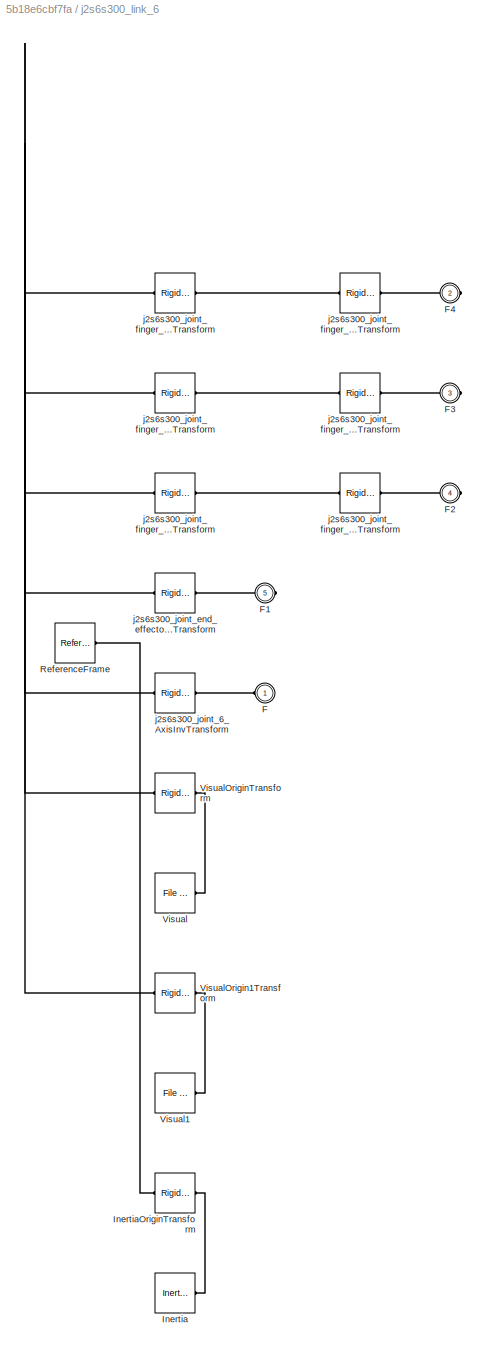
BLOCK [SubSystem] j2s6s300_link_6
  Ports = [0, 0, 0, 0, 0, 1, 4]
  RequestExecContextInheritance = off
BLOCK [PMIOPort] j2s6s300_link_6/F
  Side = Left
BLOCK [PMIOPort] j2s6s300_link_6/F1
  Port = 5
  Side = Right
BLOCK [PMIOPort] j2s6s300_link_6/F2
  Port = 4
  Side = Right
BLOCK [PMIOPort] j2s6s300_link_6/F3
  Port = 3
  Side = Right
BLOCK [PMIOPort] j2s6s300_link_6/F4
  Port = 2
  Side = Right
BLOCK [Reference] j2s6s300_link_6/Inertia  REF=sm_lib/Body Elements/Inertia
  Ports = [0, 0, 0, 0, 0, 0, 1]
  SourceBlock = sm_lib/Body Elements/Inertia
  SourceProductBaseCode = MS
  SourceType = Inertia
BLOCK [Reference] j2s6s300_link_6/InertiaOriginTransform  REF=sm_lib/Frames and
Transforms/Rigid
Transform
  Ports = [0, 0, 0, 0, 0, 1, 1]
  SourceBlock = sm_lib/Frames and\nTransforms/Rigid\nTransform
  SourceProductBaseCode = MS
  SourceType = Rigid\nTransform
BLOCK [Reference] j2s6s300_link_6/ReferenceFrame  REF=sm_lib/Frames and
Transforms/Reference
Frame
  Ports = [0, 0, 0, 0, 0, 0, 1]
  SourceBlock = sm_lib/Frames and\nTransforms/Reference\nFrame
  SourceProductBaseCode = MS
  SourceType = Reference\nFrame
BLOCK [Reference] j2s6s300_link_6/Visual  REF=sm_lib/Body Elements/File Solid
  Ports = [0, 0, 0, 0, 0, 0, 1]
  SourceBlock = sm_lib/Body Elements/File Solid
  SourceProductBaseCode = MS
  SourceType = File Solid
BLOCK [Reference] j2s6s300_link_6/Visual1  REF=sm_lib/Body Elements/File Solid
  Ports = [0, 0, 0, 0, 0, 0, 1]
  SourceBlock = sm_lib/Body Elements/File Solid
  SourceProductBaseCode = MS
  SourceType = File Solid
BLOCK [Reference] j2s6s300_link_6/VisualOrigin1Transform  REF=sm_lib/Frames and
Transforms/Rigid
Transform
  Ports = [0, 0, 0, 0, 0, 1, 1]
  SourceBlock = sm_lib/Frames and\nTransforms/Rigid\nTransform
  SourceProductBaseCode = MS
  SourceType = Rigid\nTransform
BLOCK [Reference] j2s6s300_link_6/VisualOriginTransform  REF=sm_lib/Frames and
Transforms/Rigid
Transform
  Ports = [0, 0, 0, 0, 0, 1, 1]
  SourceBlock = sm_lib/Frames and\nTransforms/Rigid\nTransform
  SourceProductBaseCode = MS
  SourceType = Rigid\nTransform
BLOCK [Reference] j2s6s300_link_6/j2s6s300_joint_6_AxisInvTransform  REF=sm_lib/Frames and
Transforms/Rigid
Transform
  Ports = [0, 0, 0, 0, 0, 1, 1]
  SourceBlock = sm_lib/Frames and\nTransforms/Rigid\nTransform
  SourceProductBaseCode = MS
  SourceType = Rigid\nTransform
BLOCK [Reference] j2s6s300_link_6/j2s6s300_joint_end_effector_OriginTransform  REF=sm_lib/Frames and
Transforms/Rigid
Transform
  Ports = [0, 0, 0, 0, 0, 1, 1]
  SourceBlock = sm_lib/Frames and\nTransforms/Rigid\nTransform
  SourceProductBaseCode = MS
  SourceType = Rigid\nTransform
BLOCK [Reference] j2s6s300_link_6/j2s6s300_joint_finger_1_AxisTransform  REF=sm_lib/Frames and
Transforms/Rigid
Transform
  Ports = [0, 0, 0, 0, 0, 1, 1]
  SourceBlock = sm_lib/Frames and\nTransforms/Rigid\nTransform
  SourceProductBaseCode = MS
  SourceType = Rigid\nTransform
BLOCK [Reference] j2s6s300_link_6/j2s6s300_joint_finger_1_OriginTransform  REF=sm_lib/Frames and
Transforms/Rigid
Transform
  Ports = [0, 0, 0, 0, 0, 1, 1]
  SourceBlock = sm_lib/Frames and\nTransforms/Rigid\nTransform
  SourceProductBaseCode = MS
  SourceType = Rigid\nTransform
BLOCK [Reference] j2s6s300_link_6/j2s6s300_joint_finger_2_AxisTransform  REF=sm_lib/Frames and
Transforms/Rigid
Transform
  Ports = [0, 0, 0, 0, 0, 1, 1]
  SourceBlock = sm_lib/Frames and\nTransforms/Rigid\nTransform
  SourceProductBaseCode = MS
  SourceType = Rigid\nTransform
BLOCK [Reference] j2s6s300_link_6/j2s6s300_joint_finger_2_OriginTransform  REF=sm_lib/Frames and
Transforms/Rigid
Transform
  Ports = [0, 0, 0, 0, 0, 1, 1]
  SourceBlock = sm_lib/Frames and\nTransforms/Rigid\nTransform
  SourceProductBaseCode = MS
  SourceType = Rigid\nTransform
BLOCK [Reference] j2s6s300_link_6/j2s6s300_joint_finger_3_AxisTransform  REF=sm_lib/Frames and
Transforms/Rigid
Transform
  Ports = [0, 0, 0, 0, 0, 1, 1]
  SourceBlock = sm_lib/Frames and\nTransforms/Rigid\nTransform
  SourceProductBaseCode = MS
  SourceType = Rigid\nTransform
BLOCK [Reference] j2s6s300_link_6/j2s6s300_joint_finger_3_OriginTransform  REF=sm_lib/Frames and
Transforms/Rigid
Transform
  Ports = [0, 0, 0, 0, 0, 1, 1]
  SourceBlock = sm_lib/Frames and\nTransforms/Rigid\nTransform
  SourceProductBaseCode = MS
  SourceType = Rigid\nTransform
BLOCK [SubSystem] j2s6s300_link_finger_1
  Ports = [0, 0, 0, 0, 0, 1, 1]
  RequestExecContextInheritance = off
BLOCK [PMIOPort] j2s6s300_link_finger_1/F
  Side = Left
BLOCK [PMIOPort] j2s6s300_link_finger_1/F1
  Port = 2
  Side = Right
BLOCK [Reference] j2s6s300_link_finger_1/Inertia  REF=sm_lib/Body Elements/Inertia
  Ports = [0, 0, 0, 0, 0, 0, 1]
  SourceBlock = sm_lib/Body Elements/Inertia
  SourceProductBaseCode = MS
  SourceType = Inertia
BLOCK [Reference] j2s6s300_link_finger_1/InertiaOriginTransform  REF=sm_lib/Frames and
Transforms/Rigid
Transform
  Ports = [0, 0, 0, 0, 0, 1, 1]
  SourceBlock = sm_lib/Frames and\nTransforms/Rigid\nTransform
  SourceProductBaseCode = MS
  SourceType = Rigid\nTransform
BLOCK [Reference] j2s6s300_link_finger_1/ReferenceFrame  REF=sm_lib/Frames and
Transforms/Reference
Frame
  Ports = [0, 0, 0, 0, 0, 0, 1]
  SourceBlock = sm_lib/Frames and\nTransforms/Reference\nFrame
  SourceProductBaseCode = MS
  SourceType = Reference\nFrame
BLOCK [Reference] j2s6s300_link_finger_1/Visual  REF=sm_lib/Body Elements/File Solid
  Ports = [0, 0, 0, 0, 0, 0, 1]
  SourceBlock = sm_lib/Body Elements/File Solid
  SourceProductBaseCode = MS
  SourceType = File Solid
BLOCK [Reference] j2s6s300_link_finger_1/VisualOriginTransform  REF=sm_lib/Frames and
Transforms/Rigid
Transform
  Ports = [0, 0, 0, 0, 0, 1, 1]
  SourceBlock = sm_lib/Frames and\nTransforms/Rigid\nTransform
  SourceProductBaseCode = MS
  SourceType = Rigid\nTransform
BLOCK [Reference] j2s6s300_link_finger_1/j2s6s300_joint_finger_1_AxisInvTransform  REF=sm_lib/Frames and
Transforms/Rigid
Transform
  Ports = [0, 0, 0, 0, 0, 1, 1]
  SourceBlock = sm_lib/Frames and\nTransforms/Rigid\nTransform
  SourceProductBaseCode = MS
  SourceType = Rigid\nTransform
BLOCK [Reference] j2s6s300_link_finger_1/j2s6s300_joint_finger_tip_1_OriginTransform  REF=sm_lib/Frames and
Transforms/Rigid
Transform
  Ports = [0, 0, 0, 0, 0, 1, 1]
  SourceBlock = sm_lib/Frames and\nTransforms/Rigid\nTransform
  SourceProductBaseCode = MS
  SourceType = Rigid\nTransform
BLOCK [SubSystem] j2s6s300_link_finger_2
  Ports = [0, 0, 0, 0, 0, 1, 1]
  RequestExecContextInheritance = off
BLOCK [PMIOPort] j2s6s300_link_finger_2/F
  Side = Left
BLOCK [PMIOPort] j2s6s300_link_finger_2/F1
  Port = 2
  Side = Right
BLOCK [Reference] j2s6s300_link_finger_2/Inertia  REF=sm_lib/Body Elements/Inertia
  Ports = [0, 0, 0, 0, 0, 0, 1]
  SourceBlock = sm_lib/Body Elements/Inertia
  SourceProductBaseCode = MS
  SourceType = Inertia
BLOCK [Reference] j2s6s300_link_finger_2/InertiaOriginTransform  REF=sm_lib/Frames and
Transforms/Rigid
Transform
  Ports = [0, 0, 0, 0, 0, 1, 1]
  SourceBlock = sm_lib/Frames and\nTransforms/Rigid\nTransform
  SourceProductBaseCode = MS
  SourceType = Rigid\nTransform
BLOCK [Reference] j2s6s300_link_finger_2/ReferenceFrame  REF=sm_lib/Frames and
Transforms/Reference
Frame
  Ports = [0, 0, 0, 0, 0, 0, 1]
  SourceBlock = sm_lib/Frames and\nTransforms/Reference\nFrame
  SourceProductBaseCode = MS
  SourceType = Reference\nFrame
BLOCK [Reference] j2s6s300_link_finger_2/Visual  REF=sm_lib/Body Elements/File Solid
  Ports = [0, 0, 0, 0, 0, 0, 1]
  SourceBlock = sm_lib/Body Elements/File Solid
  SourceProductBaseCode = MS
  SourceType = File Solid
BLOCK [Reference] j2s6s300_link_finger_2/VisualOriginTransform  REF=sm_lib/Frames and
Transforms/Rigid
Transform
  Ports = [0, 0, 0, 0, 0, 1, 1]
  SourceBlock = sm_lib/Frames and\nTransforms/Rigid\nTransform
  SourceProductBaseCode = MS
  SourceType = Rigid\nTransform
BLOCK [Reference] j2s6s300_link_finger_2/j2s6s300_joint_finger_2_AxisInvTransform  REF=sm_lib/Frames and
Transforms/Rigid
Transform
  Ports = [0, 0, 0, 0, 0, 1, 1]
  SourceBlock = sm_lib/Frames and\nTransforms/Rigid\nTransform
  SourceProductBaseCode = MS
  SourceType = Rigid\nTransform
BLOCK [Reference] j2s6s300_link_finger_2/j2s6s300_joint_finger_tip_2_OriginTransform  REF=sm_lib/Frames and
Transforms/Rigid
Transform
  Ports = [0, 0, 0, 0, 0, 1, 1]
  SourceBlock = sm_lib/Frames and\nTransforms/Rigid\nTransform
  SourceProductBaseCode = MS
  SourceType = Rigid\nTransform
BLOCK [SubSystem] j2s6s300_link_finger_3
  Ports = [0, 0, 0, 0, 0, 1, 1]
  RequestExecContextInheritance = off
BLOCK [PMIOPort] j2s6s300_link_finger_3/F
  Side = Left
BLOCK [PMIOPort] j2s6s300_link_finger_3/F1
  Port = 2
  Side = Right
BLOCK [Reference] j2s6s300_link_finger_3/Inertia  REF=sm_lib/Body Elements/Inertia
  Ports = [0, 0, 0, 0, 0, 0, 1]
  SourceBlock = sm_lib/Body Elements/Inertia
  SourceProductBaseCode = MS
  SourceType = Inertia
BLOCK [Reference] j2s6s300_link_finger_3/InertiaOriginTransform  REF=sm_lib/Frames and
Transforms/Rigid
Transform
  Ports = [0, 0, 0, 0, 0, 1, 1]
  SourceBlock = sm_lib/Frames and\nTransforms/Rigid\nTransform
  SourceProductBaseCode = MS
  SourceType = Rigid\nTransform
BLOCK [Reference] j2s6s300_link_finger_3/ReferenceFrame  REF=sm_lib/Frames and
Transforms/Reference
Frame
  Ports = [0, 0, 0, 0, 0, 0, 1]
  SourceBlock = sm_lib/Frames and\nTransforms/Reference\nFrame
  SourceProductBaseCode = MS
  SourceType = Reference\nFrame
BLOCK [Reference] j2s6s300_link_finger_3/Visual  REF=sm_lib/Body Elements/File Solid
  Ports = [0, 0, 0, 0, 0, 0, 1]
  SourceBlock = sm_lib/Body Elements/File Solid
  SourceProductBaseCode = MS
  SourceType = File Solid
BLOCK [Reference] j2s6s300_link_finger_3/VisualOriginTransform  REF=sm_lib/Frames and
Transforms/Rigid
Transform
  Ports = [0, 0, 0, 0, 0, 1, 1]
  SourceBlock = sm_lib/Frames and\nTransforms/Rigid\nTransform
  SourceProductBaseCode = MS
  SourceType = Rigid\nTransform
BLOCK [Reference] j2s6s300_link_finger_3/j2s6s300_joint_finger_3_AxisInvTransform  REF=sm_lib/Frames and
Transforms/Rigid
Transform
  Ports = [0, 0, 0, 0, 0, 1, 1]
  SourceBlock = sm_lib/Frames and\nTransforms/Rigid\nTransform
  SourceProductBaseCode = MS
  SourceType = Rigid\nTransform
BLOCK [Reference] j2s6s300_link_finger_3/j2s6s300_joint_finger_tip_3_OriginTransform  REF=sm_lib/Frames and
Transforms/Rigid
Transform
  Ports = [0, 0, 0, 0, 0, 1, 1]
  SourceBlock = sm_lib/Frames and\nTransforms/Rigid\nTransform
  SourceProductBaseCode = MS
  SourceType = Rigid\nTransform
BLOCK [SubSystem] j2s6s300_link_finger_tip_1
  Ports = [0, 0, 0, 0, 0, 1]
  RequestExecContextInheritance = off
BLOCK [PMIOPort] j2s6s300_link_finger_tip_1/F
  Side = Left
BLOCK [Reference] j2s6s300_link_finger_tip_1/Inertia  REF=sm_lib/Body Elements/Inertia
  Ports = [0, 0, 0, 0, 0, 0, 1]
  SourceBlock = sm_lib/Body Elements/Inertia
  SourceProductBaseCode = MS
  SourceType = Inertia
BLOCK [Reference] j2s6s300_link_finger_tip_1/InertiaOriginTransform  REF=sm_lib/Frames and
Transforms/Rigid
Transform
  Ports = [0, 0, 0, 0, 0, 1, 1]
  SourceBlock = sm_lib/Frames and\nTransforms/Rigid\nTransform
  SourceProductBaseCode = MS
  SourceType = Rigid\nTransform
BLOCK [Reference] j2s6s300_link_finger_tip_1/ReferenceFrame  REF=sm_lib/Frames and
Transforms/Reference
Frame
  Ports = [0, 0, 0, 0, 0, 0, 1]
  SourceBlock = sm_lib/Frames and\nTransforms/Reference\nFrame
  SourceProductBaseCode = MS
  SourceType = Reference\nFrame
BLOCK [Reference] j2s6s300_link_finger_tip_1/Visual  REF=sm_lib/Body Elements/File Solid
  Ports = [0, 0, 0, 0, 0, 0, 1]
  SourceBlock = sm_lib/Body Elements/File Solid
  SourceProductBaseCode = MS
  SourceType = File Solid
BLOCK [Reference] j2s6s300_link_finger_tip_1/VisualOriginTransform  REF=sm_lib/Frames and
Transforms/Rigid
Transform
  Ports = [0, 0, 0, 0, 0, 1, 1]
  SourceBlock = sm_lib/Frames and\nTransforms/Rigid\nTransform
  SourceProductBaseCode = MS
  SourceType = Rigid\nTransform
BLOCK [SubSystem] j2s6s300_link_finger_tip_2
  Ports = [0, 0, 0, 0, 0, 1]
  RequestExecContextInheritance = off
BLOCK [PMIOPort] j2s6s300_link_finger_tip_2/F
  Side = Left
BLOCK [Reference] j2s6s300_link_finger_tip_2/Inertia  REF=sm_lib/Body Elements/Inertia
  Ports = [0, 0, 0, 0, 0, 0, 1]
  SourceBlock = sm_lib/Body Elements/Inertia
  SourceProductBaseCode = MS
  SourceType = Inertia
BLOCK [Reference] j2s6s300_link_finger_tip_2/InertiaOriginTransform  REF=sm_lib/Frames and
Transforms/Rigid
Transform
  Ports = [0, 0, 0, 0, 0, 1, 1]
  SourceBlock = sm_lib/Frames and\nTransforms/Rigid\nTransform
  SourceProductBaseCode = MS
  SourceType = Rigid\nTransform
BLOCK [Reference] j2s6s300_link_finger_tip_2/ReferenceFrame  REF=sm_lib/Frames and
Transforms/Reference
Frame
  Ports = [0, 0, 0, 0, 0, 0, 1]
  SourceBlock = sm_lib/Frames and\nTransforms/Reference\nFrame
  SourceProductBaseCode = MS
  SourceType = Reference\nFrame
BLOCK [Reference] j2s6s300_link_finger_tip_2/Visual  REF=sm_lib/Body Elements/File Solid
  Ports = [0, 0, 0, 0, 0, 0, 1]
  SourceBlock = sm_lib/Body Elements/File Solid
  SourceProductBaseCode = MS
  SourceType = File Solid
BLOCK [Reference] j2s6s300_link_finger_tip_2/VisualOriginTransform  REF=sm_lib/Frames and
Transforms/Rigid
Transform
  Ports = [0, 0, 0, 0, 0, 1, 1]
  SourceBlock = sm_lib/Frames and\nTransforms/Rigid\nTransform
  SourceProductBaseCode = MS
  SourceType = Rigid\nTransform
BLOCK [SubSystem] j2s6s300_link_finger_tip_3
  Ports = [0, 0, 0, 0, 0, 1]
  RequestExecContextInheritance = off
BLOCK [PMIOPort] j2s6s300_link_finger_tip_3/F
  Side = Left
BLOCK [Reference] j2s6s300_link_finger_tip_3/Inertia  REF=sm_lib/Body Elements/Inertia
  Ports = [0, 0, 0, 0, 0, 0, 1]
  SourceBlock = sm_lib/Body Elements/Inertia
  SourceProductBaseCode = MS
  SourceType = Inertia
BLOCK [Reference] j2s6s300_link_finger_tip_3/InertiaOriginTransform  REF=sm_lib/Frames and
Transforms/Rigid
Transform
  Ports = [0, 0, 0, 0, 0, 1, 1]
  SourceBlock = sm_lib/Frames and\nTransforms/Rigid\nTransform
  SourceProductBaseCode = MS
  SourceType = Rigid\nTransform
BLOCK [Reference] j2s6s300_link_finger_tip_3/ReferenceFrame  REF=sm_lib/Frames and
Transforms/Reference
Frame
  Ports = [0, 0, 0, 0, 0, 0, 1]
  SourceBlock = sm_lib/Frames and\nTransforms/Reference\nFrame
  SourceProductBaseCode = MS
  SourceType = Reference\nFrame
BLOCK [Reference] j2s6s300_link_finger_tip_3/Visual  REF=sm_lib/Body Elements/File Solid
  Ports = [0, 0, 0, 0, 0, 0, 1]
  SourceBlock = sm_lib/Body Elements/File Solid
  SourceProductBaseCode = MS
  SourceType = File Solid
BLOCK [Reference] j2s6s300_link_finger_tip_3/VisualOriginTransform  REF=sm_lib/Frames and
Transforms/Rigid
Transform
  Ports = [0, 0, 0, 0, 0, 1, 1]
  SourceBlock = sm_lib/Frames and\nTransforms/Rigid\nTransform
  SourceProductBaseCode = MS
  SourceType = Rigid\nTransform
LINE Constant1:1 -> Demux1:1
LINE Constant2:1 -> MATLAB Function:4
LINE Constant3:1 -> MATLAB Function:5
LINE Constant:1 -> MATLAB Function:3
LINE Delay1:1 -> Sum1:2
LINE Delay2:1 -> Sum2:2
LINE Delay3:1 -> Sum3:2
LINE Delay4:1 -> Sum4:2
LINE Delay5:1 -> Sum5:2
LINE Delay6:1 -> Sum6:2
LINE Delay7:1 -> Sum7:2
LINE Demux1:1 -> Simulink-PS Converter7:1
LINE Demux1:2 -> Simulink-PS Converter8:1
LINE Demux1:3 -> Simulink-PS Converter9:1
LINE Demux:1 -> Sum1:1
LINE Demux:2 -> Sum2:1
LINE Demux:3 -> Sum3:1
LINE Demux:4 -> Sum4:1
LINE Demux:5 -> Sum5:1
LINE Demux:6 -> Sum6:1
LINE Demux:7 -> Sum7:1
LINE Discrete PID Controller1:1 -> Simulink-PS Converter:1
LINE Discrete PID Controller2:1 -> Simulink-PS Converter1:1
LINE Discrete PID Controller3:1 -> Simulink-PS Converter2:1
LINE Discrete PID Controller4:1 -> Simulink-PS Converter3:1
LINE Discrete PID Controller5:1 -> Simulink-PS Converter4:1
LINE Discrete PID Controller6:1 -> Simulink-PS Converter5:1
LINE Discrete PID Controller7:1 -> Simulink-PS Converter6:1
LINE MATLAB Function:1 -> Demux:1
LINE PS-Simulink Converter1:1 -> Delay2:1
LINE PS-Simulink Converter2:1 -> Delay3:1
LINE PS-Simulink Converter3:1 -> Delay4:1
LINE PS-Simulink Converter4:1 -> Delay5:1
LINE PS-Simulink Converter5:1 -> Delay6:1
LINE PS-Simulink Converter6:1 -> Delay7:1
LINE PS-Simulink Converter:1 -> Delay1:1
LINE Saturation1:1 -> Discrete PID Controller2:1
LINE Saturation2:1 -> Discrete PID Controller3:1
LINE Saturation3:1 -> Discrete PID Controller4:1
LINE Saturation4:1 -> Discrete PID Controller5:1
LINE Saturation5:1 -> Discrete PID Controller6:1
LINE Saturation6:1 -> Discrete PID Controller7:1
LINE Saturation:1 -> Discrete PID Controller1:1
LINE Step1:1 -> MATLAB Function:2
LINE Step:1 -> MATLAB Function:1
LINE Sum1:1 -> Saturation:1
LINE Sum2:1 -> Saturation1:1
LINE Sum3:1 -> Saturation2:1
LINE Sum4:1 -> Saturation3:1
LINE Sum5:1 -> Saturation4:1
LINE Sum6:1 -> Saturation5:1
LINE Sum7:1 -> Saturation6:1
PLINE Actuator1:LConn1 -- base_link:RConn1
PLINE Actuator1:LConn2 -- Simulink-PS Converter:RConn1
PLINE Actuator1:RConn1 -- Shoulder_Link:LConn1
PLINE Actuator1:RConn2 -- PS-Simulink Converter:LConn1
PLINE Actuator2:LConn1 -- Shoulder_Link:RConn1
PLINE Actuator2:LConn2 -- Simulink-PS Converter1:RConn1
PLINE Actuator2:RConn1 -- HalfArm1_Link:LConn1
PLINE Actuator2:RConn2 -- PS-Simulink Converter1:LConn1
PLINE Actuator3:LConn1 -- HalfArm1_Link:RConn1
PLINE Actuator3:LConn2 -- Simulink-PS Converter2:RConn1
PLINE Actuator3:RConn1 -- HalfArm2_Link:LConn1
PLINE Actuator3:RConn2 -- PS-Simulink Converter2:LConn1
PLINE Actuator4:LConn1 -- HalfArm2_Link:RConn1
PLINE Actuator4:LConn2 -- Simulink-PS Converter3:RConn1
PLINE Actuator4:RConn1 -- ForeArm_Link:LConn1
PLINE Actuator4:RConn2 -- PS-Simulink Converter3:LConn1
PLINE Actuator5:LConn1 -- ForeArm_Link:RConn1
PLINE Actuator5:LConn2 -- Simulink-PS Converter4:RConn1
PLINE Actuator5:RConn1 -- Wrist1_Link:LConn1
PLINE Actuator5:RConn2 -- PS-Simulink Converter4:LConn1
PLINE Actuator6:LConn1 -- Wrist1_Link:RConn1
PLINE Actuator6:LConn2 -- Simulink-PS Converter5:RConn1
PLINE Actuator6:RConn1 -- Wrist2_Link:LConn1
PLINE Actuator6:RConn2 -- PS-Simulink Converter5:LConn1
PLINE Actuator7:LConn1 -- Wrist2_Link:RConn1
PLINE Actuator7:LConn2 -- Simulink-PS Converter6:RConn1
PLINE Actuator7:RConn1 -- Bracelet_Link:LConn1
PLINE Actuator7:RConn2 -- PS-Simulink Converter6:LConn1
PNET net1: Bracelet_Link/Actuator7_AxisInvTransform:LConn1 -- Bracelet_Link/Endeffector_OriginTransform:LConn1 -- Bracelet_Link/InertiaOriginTransform:LConn1 -- Bracelet_Link/ReferenceFrame:RConn1 -- Bracelet_Link/VisualOriginTransform:LConn1
PLINE Bracelet_Link/Actuator7_AxisInvTransform:RConn1 -- Bracelet_Link/F:RConn1
PLINE Bracelet_Link/Endeffector_OriginTransform:RConn1 -- Bracelet_Link/F1:RConn1
PLINE Bracelet_Link/Inertia:RConn1 -- Bracelet_Link/InertiaOriginTransform:RConn1
PLINE Bracelet_Link/Visual:RConn1 -- Bracelet_Link/VisualOriginTransform:RConn1
PLINE Bracelet_Link:RConn1 -- Endeffector:LConn1
PNET net2: EndEffector_Link/F:RConn1 -- EndEffector_Link/InertiaOriginTransform:LConn1 -- EndEffector_Link/ReferenceFrame:RConn1 -- EndEffector_Link/VisualOriginTransform:LConn1
PLINE EndEffector_Link/Inertia:RConn1 -- EndEffector_Link/InertiaOriginTransform:RConn1
PLINE EndEffector_Link/Visual:RConn1 -- EndEffector_Link/VisualOriginTransform:RConn1
PNET net3: EndEffector_Link:LConn1 -- Endeffector:RConn1 -- j2s6s300_link_6:LConn1
PNET net4: ForeArm_Link/Actuator4_AxisInvTransform:LConn1 -- ForeArm_Link/Actuator5_OriginTransform:LConn1 -- ForeArm_Link/InertiaOriginTransform:LConn1 -- ForeArm_Link/ReferenceFrame:RConn1 -- ForeArm_Link/VisualOriginTransform:LConn1
PLINE ForeArm_Link/Actuator4_AxisInvTransform:RConn1 -- ForeArm_Link/F:RConn1
PLINE ForeArm_Link/Actuator5_AxisTransform:LConn1 -- ForeArm_Link/Actuator5_OriginTransform:RConn1
PLINE ForeArm_Link/Actuator5_AxisTransform:RConn1 -- ForeArm_Link/F1:RConn1
PLINE ForeArm_Link/Inertia:RConn1 -- ForeArm_Link/InertiaOriginTransform:RConn1
PLINE ForeArm_Link/Visual:RConn1 -- ForeArm_Link/VisualOriginTransform:RConn1
PNET net5: HalfArm1_Link/Actuator2_AxisInvTransform:LConn1 -- HalfArm1_Link/Actuator3_OriginTransform:LConn1 -- HalfArm1_Link/InertiaOriginTransform:LConn1 -- HalfArm1_Link/ReferenceFrame:RConn1 -- HalfArm1_Link/VisualOriginTransform:LConn1
PLINE HalfArm1_Link/Actuator2_AxisInvTransform:RConn1 -- HalfArm1_Link/F:RConn1
PLINE HalfArm1_Link/Actuator3_AxisTransform:LConn1 -- HalfArm1_Link/Actuator3_OriginTransform:RConn1
PLINE HalfArm1_Link/Actuator3_AxisTransform:RConn1 -- HalfArm1_Link/F1:RConn1
PLINE HalfArm1_Link/Inertia:RConn1 -- HalfArm1_Link/InertiaOriginTransform:RConn1
PLINE HalfArm1_Link/Visual:RConn1 -- HalfArm1_Link/VisualOriginTransform:RConn1
PNET net6: HalfArm2_Link/Actuator3_AxisInvTransform:LConn1 -- HalfArm2_Link/Actuator4_OriginTransform:LConn1 -- HalfArm2_Link/InertiaOriginTransform:LConn1 -- HalfArm2_Link/ReferenceFrame:RConn1 -- HalfArm2_Link/VisualOriginTransform:LConn1
PLINE HalfArm2_Link/Actuator3_AxisInvTransform:RConn1 -- HalfArm2_Link/F:RConn1
PLINE HalfArm2_Link/Actuator4_AxisTransform:LConn1 -- HalfArm2_Link/Actuator4_OriginTransform:RConn1
PLINE HalfArm2_Link/Actuator4_AxisTransform:RConn1 -- HalfArm2_Link/F1:RConn1
PLINE HalfArm2_Link/Inertia:RConn1 -- HalfArm2_Link/InertiaOriginTransform:RConn1
PLINE HalfArm2_Link/Visual:RConn1 -- HalfArm2_Link/VisualOriginTransform:RConn1
PNET net7: MechanismConfiguration:RConn1 -- Solver Configuration:RConn1 -- World:RConn1 -- base_link:LConn1
PNET net8: Shoulder_Link/Actuator1_AxisInvTransform:LConn1 -- Shoulder_Link/Actuator2_OriginTransform:LConn1 -- Shoulder_Link/InertiaOriginTransform:LConn1 -- Shoulder_Link/ReferenceFrame:RConn1 -- Shoulder_Link/VisualOriginTransform:LConn1
PLINE Shoulder_Link/Actuator1_AxisInvTransform:RConn1 -- Shoulder_Link/F:RConn1
PLINE Shoulder_Link/Actuator2_AxisTransform:LConn1 -- Shoulder_Link/Actuator2_OriginTransform:RConn1
PLINE Shoulder_Link/Actuator2_AxisTransform:RConn1 -- Shoulder_Link/F1:RConn1
PLINE Shoulder_Link/Inertia:RConn1 -- Shoulder_Link/InertiaOriginTransform:RConn1
PLINE Shoulder_Link/Visual:RConn1 -- Shoulder_Link/VisualOriginTransform:RConn1
PLINE Simulink-PS Converter7:RConn1 -- j2s6s300_joint_finger_1:LConn2
PLINE Simulink-PS Converter8:RConn1 -- j2s6s300_joint_finger_2:LConn2
PLINE Simulink-PS Converter9:RConn1 -- j2s6s300_joint_finger_3:LConn2
PNET net9: Wrist1_Link/Actuator5_AxisInvTransform:LConn1 -- Wrist1_Link/Actuator6_OriginTransform:LConn1 -- Wrist1_Link/InertiaOriginTransform:LConn1 -- Wrist1_Link/ReferenceFrame:RConn1 -- Wrist1_Link/VisualOriginTransform:LConn1
PLINE Wrist1_Link/Actuator5_AxisInvTransform:RConn1 -- Wrist1_Link/F:RConn1
PLINE Wrist1_Link/Actuator6_AxisTransform:LConn1 -- Wrist1_Link/Actuator6_OriginTransform:RConn1
PLINE Wrist1_Link/Actuator6_AxisTransform:RConn1 -- Wrist1_Link/F1:RConn1
PLINE Wrist1_Link/Inertia:RConn1 -- Wrist1_Link/InertiaOriginTransform:RConn1
PLINE Wrist1_Link/Visual:RConn1 -- Wrist1_Link/VisualOriginTransform:RConn1
PNET net10: Wrist2_Link/Actuator6_AxisInvTransform:LConn1 -- Wrist2_Link/Actuator7_OriginTransform:LConn1 -- Wrist2_Link/InertiaOriginTransform:LConn1 -- Wrist2_Link/ReferenceFrame:RConn1 -- Wrist2_Link/VisualOriginTransform:LConn1
PLINE Wrist2_Link/Actuator6_AxisInvTransform:RConn1 -- Wrist2_Link/F:RConn1
PLINE Wrist2_Link/Actuator7_AxisTransform:LConn1 -- Wrist2_Link/Actuator7_OriginTransform:RConn1
PLINE Wrist2_Link/Actuator7_AxisTransform:RConn1 -- Wrist2_Link/F1:RConn1
PLINE Wrist2_Link/Inertia:RConn1 -- Wrist2_Link/InertiaOriginTransform:RConn1
PLINE Wrist2_Link/Visual:RConn1 -- Wrist2_Link/VisualOriginTransform:RConn1
PLINE base_link/Actuator1_AxisTransform:LConn1 -- base_link/Actuator1_OriginTransform:RConn1
PLINE base_link/Actuator1_AxisTransform:RConn1 -- base_link/F1:RConn1
PNET net11: base_link/Actuator1_OriginTransform:LConn1 -- base_link/F:RConn1 -- base_link/InertiaOriginTransform:LConn1 -- base_link/ReferenceFrame:RConn1 -- base_link/VisualOriginTransform:LConn1
PLINE base_link/Inertia:RConn1 -- base_link/InertiaOriginTransform:RConn1
PLINE base_link/Visual:RConn1 -- base_link/VisualOriginTransform:RConn1
PLINE j2s6s300_joint_end_effector:LConn1 -- j2s6s300_link_6:RConn4
PLINE j2s6s300_joint_finger_1:LConn1 -- j2s6s300_link_6:RConn3
PLINE j2s6s300_joint_finger_1:RConn1 -- j2s6s300_link_finger_1:LConn1
PLINE j2s6s300_joint_finger_2:LConn1 -- j2s6s300_link_6:RConn2
PLINE j2s6s300_joint_finger_2:RConn1 -- j2s6s300_link_finger_2:LConn1
PLINE j2s6s300_joint_finger_3:LConn1 -- j2s6s300_link_6:RConn1
PLINE j2s6s300_joint_finger_3:RConn1 -- j2s6s300_link_finger_3:LConn1
PLINE j2s6s300_joint_finger_tip_1:LConn1 -- j2s6s300_link_finger_1:RConn1
PLINE j2s6s300_joint_finger_tip_1:RConn1 -- j2s6s300_link_finger_tip_1:LConn1
PLINE j2s6s300_joint_finger_tip_2:LConn1 -- j2s6s300_link_finger_2:RConn1
PLINE j2s6s300_joint_finger_tip_2:RConn1 -- j2s6s300_link_finger_tip_2:LConn1
PLINE j2s6s300_joint_finger_tip_3:LConn1 -- j2s6s300_link_finger_3:RConn1
PLINE j2s6s300_joint_finger_tip_3:RConn1 -- j2s6s300_link_finger_tip_3:LConn1
PLINE j2s6s300_link_6/F1:RConn1 -- j2s6s300_link_6/j2s6s300_joint_end_effector_OriginTransform:RConn1
PLINE j2s6s300_link_6/F2:RConn1 -- j2s6s300_link_6/j2s6s300_joint_finger_1_AxisTransform:RConn1
PLINE j2s6s300_link_6/F3:RConn1 -- j2s6s300_link_6/j2s6s300_joint_finger_2_AxisTransform:RConn1
PLINE j2s6s300_link_6/F4:RConn1 -- j2s6s300_link_6/j2s6s300_joint_finger_3_AxisTransform:RConn1
PLINE j2s6s300_link_6/F:RConn1 -- j2s6s300_link_6/j2s6s300_joint_6_AxisInvTransform:RConn1
PLINE j2s6s300_link_6/Inertia:RConn1 -- j2s6s300_link_6/InertiaOriginTransform:RConn1
PNET net12: j2s6s300_link_6/InertiaOriginTransform:LConn1 -- j2s6s300_link_6/ReferenceFrame:RConn1 -- j2s6s300_link_6/VisualOrigin1Transform:LConn1 -- j2s6s300_link_6/VisualOriginTransform:LConn1 -- j2s6s300_link_6/j2s6s300_joint_6_AxisInvTransform:LConn1 -- j2s6s300_link_6/j2s6s300_joint_end_effector_OriginTransform:LConn1 -- j2s6s300_link_6/j2s6s300_joint_finger_1_OriginTransform:LConn1 -- j2s6s300_link_6/j2s6s300_joint_finger_2_OriginTransform:LConn1 -- j2s6s300_link_6/j2s6s300_joint_finger_3_OriginTransform:LConn1
PLINE j2s6s300_link_6/Visual1:RConn1 -- j2s6s300_link_6/VisualOrigin1Transform:RConn1
PLINE j2s6s300_link_6/Visual:RConn1 -- j2s6s300_link_6/VisualOriginTransform:RConn1
PLINE j2s6s300_link_6/j2s6s300_joint_finger_1_AxisTransform:LConn1 -- j2s6s300_link_6/j2s6s300_joint_finger_1_OriginTransform:RConn1
PLINE j2s6s300_link_6/j2s6s300_joint_finger_2_AxisTransform:LConn1 -- j2s6s300_link_6/j2s6s300_joint_finger_2_OriginTransform:RConn1
PLINE j2s6s300_link_6/j2s6s300_joint_finger_3_AxisTransform:LConn1 -- j2s6s300_link_6/j2s6s300_joint_finger_3_OriginTransform:RConn1
PLINE j2s6s300_link_finger_1/F1:RConn1 -- j2s6s300_link_finger_1/j2s6s300_joint_finger_tip_1_OriginTransform:RConn1
PLINE j2s6s300_link_finger_1/F:RConn1 -- j2s6s300_link_finger_1/j2s6s300_joint_finger_1_AxisInvTransform:RConn1
PLINE j2s6s300_link_finger_1/Inertia:RConn1 -- j2s6s300_link_finger_1/InertiaOriginTransform:RConn1
PNET net13: j2s6s300_link_finger_1/InertiaOriginTransform:LConn1 -- j2s6s300_link_finger_1/ReferenceFrame:RConn1 -- j2s6s300_link_finger_1/VisualOriginTransform:LConn1 -- j2s6s300_link_finger_1/j2s6s300_joint_finger_1_AxisInvTransform:LConn1 -- j2s6s300_link_finger_1/j2s6s300_joint_finger_tip_1_OriginTransform:LConn1
PLINE j2s6s300_link_finger_1/Visual:RConn1 -- j2s6s300_link_finger_1/VisualOriginTransform:RConn1
PLINE j2s6s300_link_finger_2/F1:RConn1 -- j2s6s300_link_finger_2/j2s6s300_joint_finger_tip_2_OriginTransform:RConn1
PLINE j2s6s300_link_finger_2/F:RConn1 -- j2s6s300_link_finger_2/j2s6s300_joint_finger_2_AxisInvTransform:RConn1
PLINE j2s6s300_link_finger_2/Inertia:RConn1 -- j2s6s300_link_finger_2/InertiaOriginTransform:RConn1
PNET net14: j2s6s300_link_finger_2/InertiaOriginTransform:LConn1 -- j2s6s300_link_finger_2/ReferenceFrame:RConn1 -- j2s6s300_link_finger_2/VisualOriginTransform:LConn1 -- j2s6s300_link_finger_2/j2s6s300_joint_finger_2_AxisInvTransform:LConn1 -- j2s6s300_link_finger_2/j2s6s300_joint_finger_tip_2_OriginTransform:LConn1
PLINE j2s6s300_link_finger_2/Visual:RConn1 -- j2s6s300_link_finger_2/VisualOriginTransform:RConn1
PLINE j2s6s300_link_finger_3/F1:RConn1 -- j2s6s300_link_finger_3/j2s6s300_joint_finger_tip_3_OriginTransform:RConn1
PLINE j2s6s300_link_finger_3/F:RConn1 -- j2s6s300_link_finger_3/j2s6s300_joint_finger_3_AxisInvTransform:RConn1
PLINE j2s6s300_link_finger_3/Inertia:RConn1 -- j2s6s300_link_finger_3/InertiaOriginTransform:RConn1
PNET net15: j2s6s300_link_finger_3/InertiaOriginTransform:LConn1 -- j2s6s300_link_finger_3/ReferenceFrame:RConn1 -- j2s6s300_link_finger_3/VisualOriginTransform:LConn1 -- j2s6s300_link_finger_3/j2s6s300_joint_finger_3_AxisInvTransform:LConn1 -- j2s6s300_link_finger_3/j2s6s300_joint_finger_tip_3_OriginTransform:LConn1
PLINE j2s6s300_link_finger_3/Visual:RConn1 -- j2s6s300_link_finger_3/VisualOriginTransform:RConn1
PNET net16: j2s6s300_link_finger_tip_1/F:RConn1 -- j2s6s300_link_finger_tip_1/InertiaOriginTransform:LConn1 -- j2s6s300_link_finger_tip_1/ReferenceFrame:RConn1 -- j2s6s300_link_finger_tip_1/VisualOriginTransform:LConn1
PLINE j2s6s300_link_finger_tip_1/Inertia:RConn1 -- j2s6s300_link_finger_tip_1/InertiaOriginTransform:RConn1
PLINE j2s6s300_link_finger_tip_1/Visual:RConn1 -- j2s6s300_link_finger_tip_1/VisualOriginTransform:RConn1
PNET net17: j2s6s300_link_finger_tip_2/F:RConn1 -- j2s6s300_link_finger_tip_2/InertiaOriginTransform:LConn1 -- j2s6s300_link_finger_tip_2/ReferenceFrame:RConn1 -- j2s6s300_link_finger_tip_2/VisualOriginTransform:LConn1
PLINE j2s6s300_link_finger_tip_2/Inertia:RConn1 -- j2s6s300_link_finger_tip_2/InertiaOriginTransform:RConn1
PLINE j2s6s300_link_finger_tip_2/Visual:RConn1 -- j2s6s300_link_finger_tip_2/VisualOriginTransform:RConn1
PNET net18: j2s6s300_link_finger_tip_3/F:RConn1 -- j2s6s300_link_finger_tip_3/InertiaOriginTransform:LConn1 -- j2s6s300_link_finger_tip_3/ReferenceFrame:RConn1 -- j2s6s300_link_finger_tip_3/VisualOriginTransform:LConn1
PLINE j2s6s300_link_finger_tip_3/Inertia:RConn1 -- j2s6s300_link_finger_tip_3/InertiaOriginTransform:RConn1
PLINE j2s6s300_link_finger_tip_3/Visual:RConn1 -- j2s6s300_link_finger_tip_3/VisualOriginTransform:RConn1
note: PNET lines group multi-terminal physical nets as a canonical sorted terminal list (undirected conserving connections); 2-terminal nets keep the pairwise PLINE form
CHART MATLAB Function states=1 transitions=1
  STATE_LABEL 'eML_blk_kernel()'
  STATE_LABEL 'SCRIPT:\nfunction y = fcn(u,v,homeAngles,readyAngles,grabObjectAngles)\n\nif u == 0\n    y = homeAngles;\nelseif u == 1\n    y = readyAngles;\nelse\n    y = [0;0;0;0;0;0;0];\nend\nif v == 1\n    y = grabObjectAngles;\nelse\nend'
CHART  states=0 transitions=0
